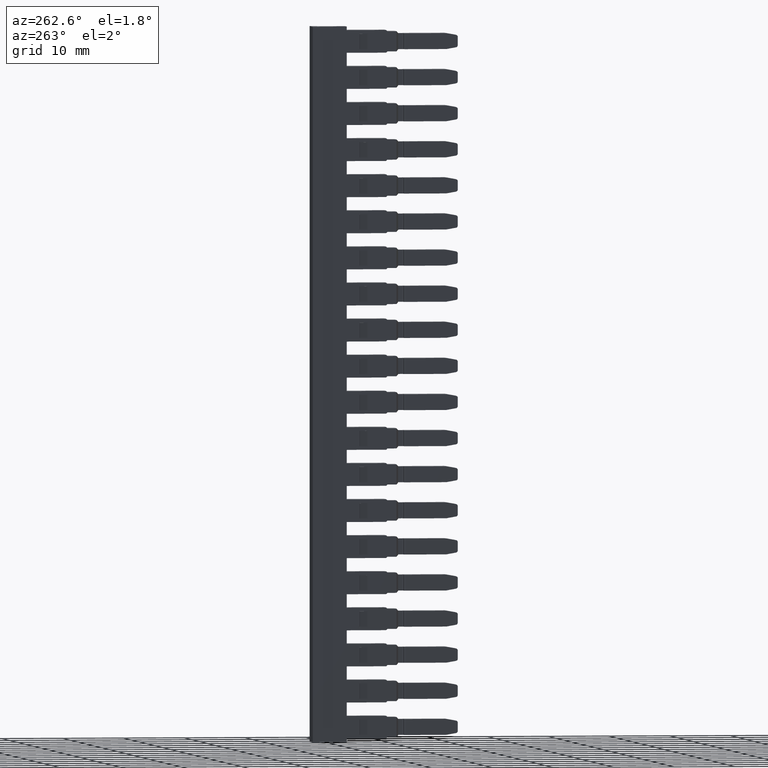
[diagram: clean part render]
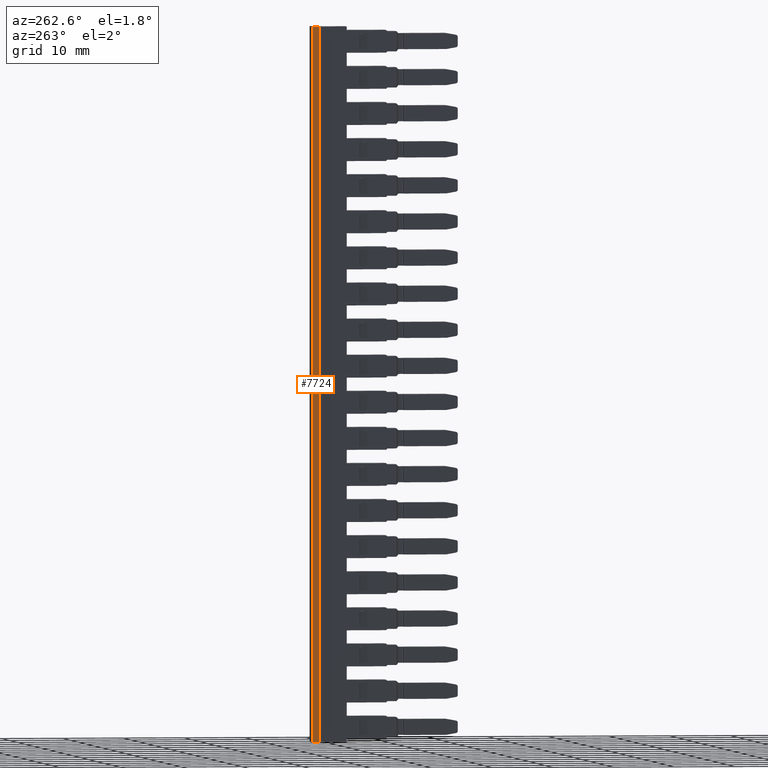
[diagram: same view with one face highlighted and labeled with its STEP entity id]
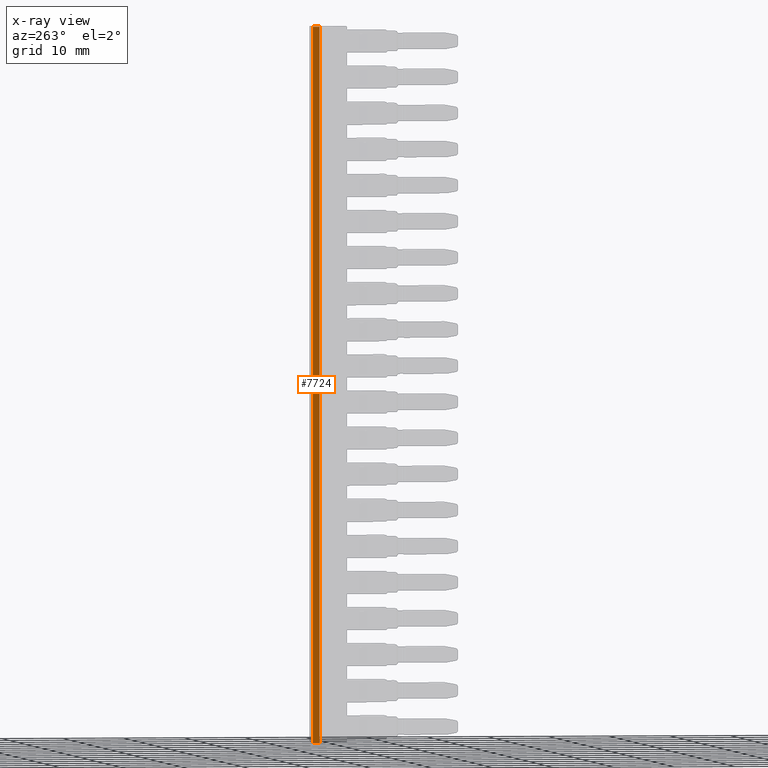
[diagram: x-ray of the same camera — body ghosted, the highlighted face saturated]
A machine part, auxiliary view. The second image highlights one B-rep face of the part: STEP entity #7724.
The next image is the same camera in x-ray: the body ghosted, the highlighted face saturated — about 0% of this face is hidden behind the body in this view.
In plain terms, the highlighted planar face has unit normal (-1, 0, -0).
Its self-contained STEP definition (entity closure, byte-faithful):
#99 = EDGE_LOOP ( 'NONE', ( #13384, #13422, #13420, #13451 ) ) ;
#436 = VECTOR ( 'NONE', #19105, 1000.000000000000000 ) ;
#459 = VECTOR ( 'NONE', #19216, 1000.000000000000000 ) ;
#480 = VECTOR ( 'NONE', #19151, 1000.000000000000000 ) ;
#505 = VECTOR ( 'NONE', #19208, 1000.000000000000000 ) ;
#2350 = FACE_OUTER_BOUND ( 'NONE', #99, .T. ) ;
#2351 = PLANE ( 'NONE',  #25536 ) ;
#2353 = CARTESIAN_POINT ( 'NONE',  ( 1456.068071211366000, 1009.692679537520100, -112.3308473691034000 ) ) ;
#2355 = DIRECTION ( 'NONE',  ( -1.000000000000000000, 6.401193638283130500E-015, -1.715124499442844000E-015 ) ) ;
#2356 = DIRECTION ( 'NONE',  ( -6.401193638283130500E-015, -1.000000000000000000, 0.0000000000000000000 ) ) ;
#4125 = EDGE_CURVE ( 'NONE', #10338, #10313, #19096, .T. ) ;
#4148 = EDGE_CURVE ( 'NONE', #10345, #10338, #19137, .T. ) ;
#4161 = EDGE_CURVE ( 'NONE', #10314, #10313, #19180, .T. ) ;
#4171 = EDGE_CURVE ( 'NONE', #10314, #10345, #19206, .T. ) ;
#7724 = ADVANCED_FACE ( 'NONE', ( #2350 ), #2351, .T. ) ;
#10313 = VERTEX_POINT ( 'NONE', #26028 ) ;
#10314 = VERTEX_POINT ( 'NONE', #25982 ) ;
#10338 = VERTEX_POINT ( 'NONE', #26032 ) ;
#10345 = VERTEX_POINT ( 'NONE', #26042 ) ;
#13384 = ORIENTED_EDGE ( 'NONE', *, *, #4148, .T. ) ;
#13420 = ORIENTED_EDGE ( 'NONE', *, *, #4161, .F. ) ;
#13422 = ORIENTED_EDGE ( 'NONE', *, *, #4125, .T. ) ;
#13451 = ORIENTED_EDGE ( 'NONE', *, *, #4171, .T. ) ;
#19096 = LINE ( 'NONE', #19128, #436 ) ;
#19105 = DIRECTION ( 'NONE',  ( 6.401193638283130500E-015, 1.000000000000000000, -0.0000000000000000000 ) ) ;
#19128 = CARTESIAN_POINT ( 'NONE',  ( 1456.068071211366000, 1009.692679537520100, -77.04999999999269300 ) ) ;
#19137 = LINE ( 'NONE', #19160, #480 ) ;
#19151 = DIRECTION ( 'NONE',  ( 0.0000000000000000000, -0.0000000000000000000, 1.000000000000000000 ) ) ;
#19160 = CARTESIAN_POINT ( 'NONE',  ( 1456.068071211366000, 1008.542679537518100, -100.1158559843420100 ) ) ;
#19180 = LINE ( 'NONE', #19192, #459 ) ;
#19192 = CARTESIAN_POINT ( 'NONE',  ( 1456.068071211366000, 1009.692679537520100, -112.3308473691034000 ) ) ;
#19206 = LINE ( 'NONE', #19207, #505 ) ;
#19207 = CARTESIAN_POINT ( 'NONE',  ( 1456.068071211366000, 1009.692679537394800, -194.0499999999874500 ) ) ;
#19208 = DIRECTION ( 'NONE',  ( -6.401193638283130500E-015, -1.000000000000000000, 0.0000000000000000000 ) ) ;
#19216 = DIRECTION ( 'NONE',  ( 1.734374079839205100E-028, -6.606529101504750500E-015, 1.000000000000000000 ) ) ;
#25536 = AXIS2_PLACEMENT_3D ( 'NONE', #2353, #2355, #2356 ) ;
#25982 = CARTESIAN_POINT ( 'NONE',  ( 1456.068071211366000, 1009.692679537388800, -194.0499999999874500 ) ) ;
#26028 = CARTESIAN_POINT ( 'NONE',  ( 1456.068071211366000, 1009.692679537514100, -77.04999999999267900 ) ) ;
#26032 = CARTESIAN_POINT ( 'NONE',  ( 1456.068071211366000, 1008.542679537518100, -77.04999999999270700 ) ) ;
#26042 = CARTESIAN_POINT ( 'NONE',  ( 1456.068071211366000, 1008.542679537391300, -194.0499999999873600 ) ) ;